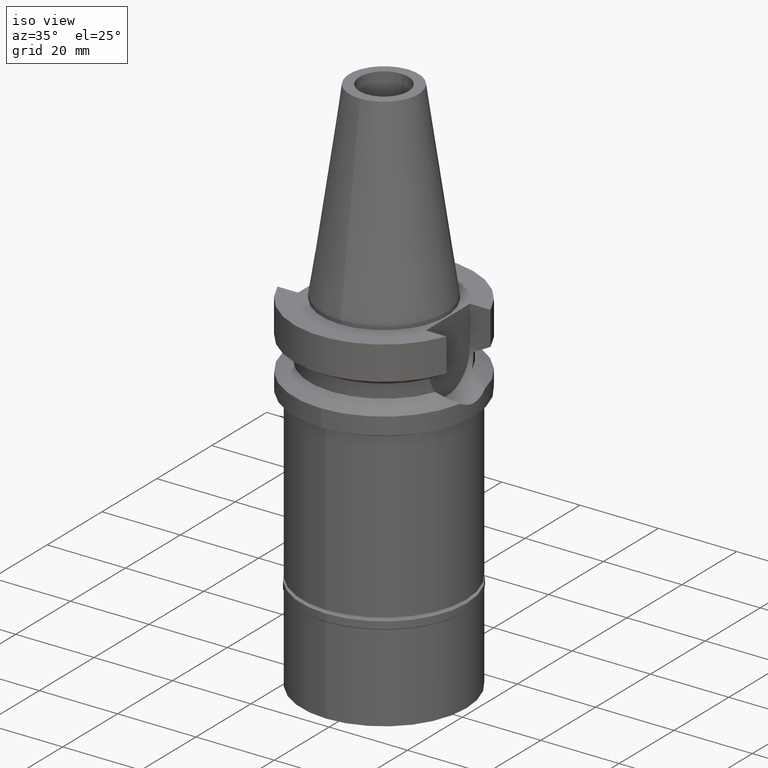
[diagram: clean part render]
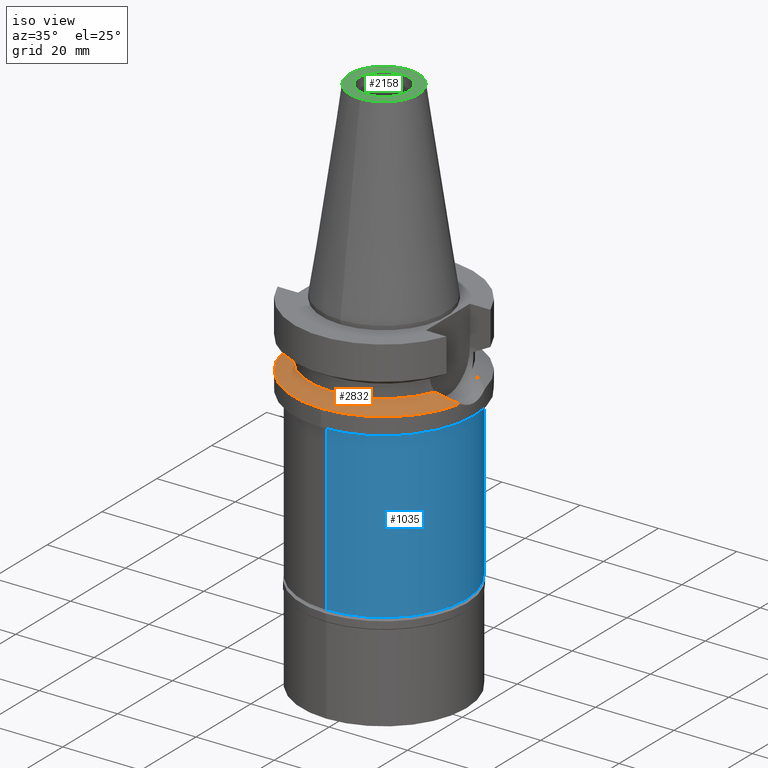
[diagram: same view with three faces highlighted in distinct colors, each labeled with its STEP entity id]
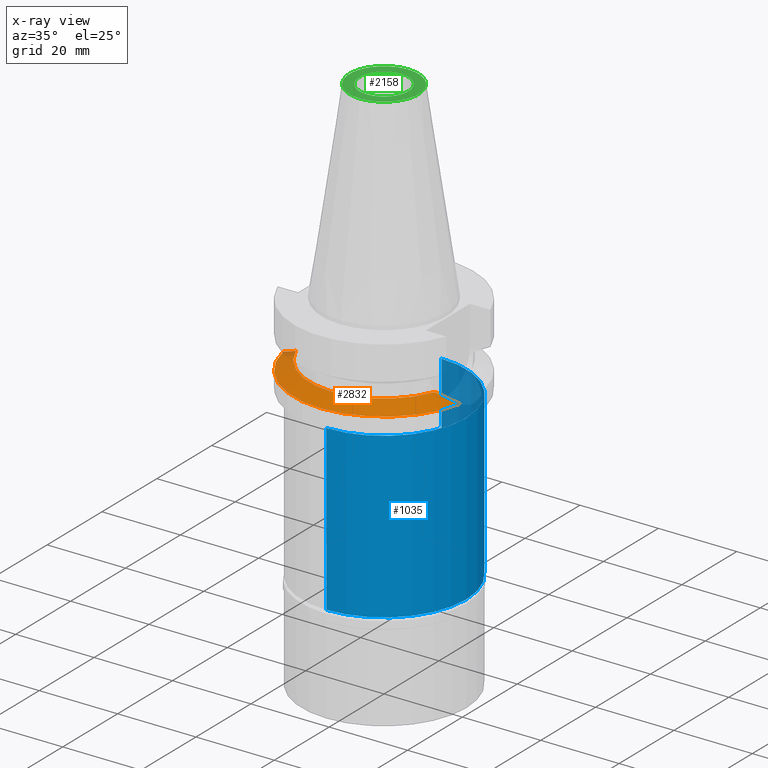
[diagram: x-ray of the same camera — body ghosted, the three highlighted faces saturated]
A machine part, iso view with three faces highlighted in distinct colors.
The next image is the same camera in x-ray (body ghosted, the three faces saturated) — at least one of them is partly hidden behind the body in this view.
Their STEP definitions:

[orange] entity #2832 — the highlighted conical surface has half-angle 60 deg.
#43 = ORIENTED_EDGE ( 'NONE', *, *, #3037, .F. ) ;
#79 = ORIENTED_EDGE ( 'NONE', *, *, #2397, .F. ) ;
#194 = VERTEX_POINT ( 'NONE', #911 ) ;
#232 = DIRECTION ( 'NONE',  ( 0.0000000000000000000, 0.0000000000000000000, -1.000000000000000000 ) ) ;
#299 = EDGE_LOOP ( 'NONE', ( #1154, #2752, #2180, #79, #43 ) ) ;
#315 = CARTESIAN_POINT ( 'NONE',  ( -21.37344794594694974, -5.343258989447710938, -17.05846002342700629 ) ) ;
#318 = AXIS2_PLACEMENT_3D ( 'NONE', #2662, #2914, #1509 ) ;
#402 = CARTESIAN_POINT ( 'NONE',  ( 19.77328210340755277, -6.137069160789010880, -16.28355951929453838 ) ) ;
#447 = CARTESIAN_POINT ( 'NONE',  ( 22.55786346208000026, -4.488072640470000430, -17.63279163029000074 ) ) ;
#493 = VERTEX_POINT ( 'NONE', #1114 ) ;
#661 = EDGE_CURVE ( 'NONE', #493, #2616, #1901, .T. ) ;
#740 = DIRECTION ( 'NONE',  ( 0.0000000000000000000, -1.000000000000000000, 0.0000000000000000000 ) ) ;
#783 = CARTESIAN_POINT ( 'NONE',  ( -17.75736593456000278, -6.758398853743999624, -15.32339055352999857 ) ) ;
#788 = CARTESIAN_POINT ( 'NONE',  ( -22.55786346208000026, -4.488072640470000430, -17.63279163029000074 ) ) ;
#796 = DIRECTION ( 'NONE',  ( 0.9807766722643714852, -0.1951335930638943839, 0.0000000000000000000 ) ) ;
#911 = CARTESIAN_POINT ( 'NONE',  ( 17.75736593456000278, -6.758398853743999624, -15.32339055352999857 ) ) ;
#1064 = AXIS2_PLACEMENT_3D ( 'NONE', #2933, #1236, #796 ) ;
#1114 = CARTESIAN_POINT ( 'NONE',  ( 0.0000000000000000000, -23.00000000000000000, -17.63279163029000074 ) ) ;
#1130 = B_SPLINE_CURVE_WITH_KNOTS ( 'NONE', 3,
 ( #2549, #402, #1879, #447 ),
 .UNSPECIFIED., .F., .F.,
 ( 4, 4 ),
 ( 0.0000000000000000000, 1.000000000000000000 ),
 .UNSPECIFIED. ) ;
#1154 = ORIENTED_EDGE ( 'NONE', *, *, #661, .F. ) ;
#1203 = DIRECTION ( 'NONE',  ( 0.0000000000000000000, -1.000000000000000000, 0.0000000000000000000 ) ) ;
#1214 = B_SPLINE_CURVE_WITH_KNOTS ( 'NONE', 3,
 ( #2458, #315, #2922, #783 ),
 .UNSPECIFIED., .F., .F.,
 ( 4, 4 ),
 ( 0.0000000000000000000, 1.000000000000000000 ),
 .UNSPECIFIED. ) ;
#1232 = VERTEX_POINT ( 'NONE', #1922 ) ;
#1236 = DIRECTION ( 'NONE',  ( 0.0000000000000000000, 0.0000000000000000000, -1.000000000000000000 ) ) ;
#1269 = CIRCLE ( 'NONE', #1064, 23.00000000000001066 ) ;
#1509 = DIRECTION ( 'NONE',  ( 0.0000000000000000000, -1.000000000000000000, 0.0000000000000000000 ) ) ;
#1839 = EDGE_CURVE ( 'NONE', #194, #1232, #1130, .T. ) ;
#1879 = CARTESIAN_POINT ( 'NONE',  ( 21.37344794591421859, -5.343258989462262853, -17.05846002341723278 ) ) ;
#1901 = CIRCLE ( 'NONE', #3023, 23.00000000000000000 ) ;
#1922 = CARTESIAN_POINT ( 'NONE',  ( 22.55786346208000026, -4.488072640470000430, -17.63279163029000074 ) ) ;
#2087 = VERTEX_POINT ( 'NONE', #2334 ) ;
#2149 = CIRCLE ( 'NONE', #2980, 19.00000000000000000 ) ;
#2180 = ORIENTED_EDGE ( 'NONE', *, *, #1839, .F. ) ;
#2210 = FACE_OUTER_BOUND ( 'NONE', #299, .T. ) ;
#2334 = CARTESIAN_POINT ( 'NONE',  ( -17.75736593456000278, -6.758398853743999624, -15.32339055352999857 ) ) ;
#2397 = EDGE_CURVE ( 'NONE', #2087, #194, #2149, .T. ) ;
#2413 = CARTESIAN_POINT ( 'NONE',  ( 0.0000000000000000000, 0.0000000000000000000, -15.32339055352999857 ) ) ;
#2458 = CARTESIAN_POINT ( 'NONE',  ( -22.55786346208000026, -4.488072640470000430, -17.63279163029000074 ) ) ;
#2549 = CARTESIAN_POINT ( 'NONE',  ( 17.75736593456000278, -6.758398853743999624, -15.32339055352999857 ) ) ;
#2616 = VERTEX_POINT ( 'NONE', #788 ) ;
#2625 = CARTESIAN_POINT ( 'NONE',  ( 0.0000000000000000000, 0.0000000000000000000, -17.63279163029000074 ) ) ;
#2662 = CARTESIAN_POINT ( 'NONE',  ( 0.0000000000000000000, 0.0000000000000000000, -16.47809109191000232 ) ) ;
#2752 = ORIENTED_EDGE ( 'NONE', *, *, #2863, .F. ) ;
#2808 = CONICAL_SURFACE ( 'NONE', #318, 21.00000000000000000, 1.047197551196400456 ) ;
#2832 = ADVANCED_FACE ( 'NONE', ( #2210 ), #2808, .T. ) ;
#2863 = EDGE_CURVE ( 'NONE', #1232, #493, #1269, .T. ) ;
#2867 = DIRECTION ( 'NONE',  ( 0.0000000000000000000, 0.0000000000000000000, 1.000000000000000000 ) ) ;
#2914 = DIRECTION ( 'NONE',  ( 0.0000000000000000000, 0.0000000000000000000, -1.000000000000000000 ) ) ;
#2922 = CARTESIAN_POINT ( 'NONE',  ( -19.77328210344028392, -6.137069160779484278, -16.28355951930925372 ) ) ;
#2933 = CARTESIAN_POINT ( 'NONE',  ( 0.0000000000000000000, 0.0000000000000000000, -17.63279163029000074 ) ) ;
#2980 = AXIS2_PLACEMENT_3D ( 'NONE', #2413, #2867, #740 ) ;
#3023 = AXIS2_PLACEMENT_3D ( 'NONE', #2625, #232, #1203 ) ;
#3037 = EDGE_CURVE ( 'NONE', #2616, #2087, #1214, .T. ) ;

[blue] entity #1035 — the highlighted cylindrical surface (partial cylindrical patch) has radius 21 mm, axis along (0, 0, -1).
#49 = AXIS2_PLACEMENT_3D ( 'NONE', #1344, #2659, #1973 ) ;
#94 = ORIENTED_EDGE ( 'NONE', *, *, #1815, .T. ) ;
#176 = DIRECTION ( 'NONE',  ( 0.0000000000000000000, 1.000000000000000000, 0.0000000000000000000 ) ) ;
#284 = CARTESIAN_POINT ( 'NONE',  ( 0.0000000000000000000, 21.00000000000000000, -23.00000000000000000 ) ) ;
#377 = CYLINDRICAL_SURFACE ( 'NONE', #49, 21.00000000000000000 ) ;
#437 = AXIS2_PLACEMENT_3D ( 'NONE', #2050, #600, #176 ) ;
#529 = CIRCLE ( 'NONE', #3028, 21.00000000000000000 ) ;
#542 = EDGE_LOOP ( 'NONE', ( #94, #1954, #1298, #2858 ) ) ;
#600 = DIRECTION ( 'NONE',  ( 0.0000000000000000000, 0.0000000000000000000, -1.000000000000000000 ) ) ;
#611 = VECTOR ( 'NONE', #736, 1000.000000000000000 ) ;
#736 = DIRECTION ( 'NONE',  ( 0.0000000000000000000, 0.0000000000000000000, -1.000000000000000000 ) ) ;
#862 = DIRECTION ( 'NONE',  ( 0.0000000000000000000, -1.000000000000000000, 0.0000000000000000000 ) ) ;
#886 = DIRECTION ( 'NONE',  ( 0.0000000000000000000, 0.0000000000000000000, -1.000000000000000000 ) ) ;
#1035 = ADVANCED_FACE ( 'NONE', ( #2523 ), #377, .T. ) ;
#1055 = VERTEX_POINT ( 'NONE', #2636 ) ;
#1274 = VERTEX_POINT ( 'NONE', #1339 ) ;
#1288 = CIRCLE ( 'NONE', #437, 21.00000000000000000 ) ;
#1298 = ORIENTED_EDGE ( 'NONE', *, *, #1669, .T. ) ;
#1339 = CARTESIAN_POINT ( 'NONE',  ( 0.0000000000000000000, -21.00000000000000000, -23.00000000000000000 ) ) ;
#1344 = CARTESIAN_POINT ( 'NONE',  ( 0.0000000000000000000, 0.0000000000000000000, 0.0000000000000000000 ) ) ;
#1361 = LINE ( 'NONE', #2565, #2004 ) ;
#1466 = LINE ( 'NONE', #284, #611 ) ;
#1669 = EDGE_CURVE ( 'NONE', #1055, #2915, #529, .T. ) ;
#1815 = EDGE_CURVE ( 'NONE', #2792, #1274, #1288, .T. ) ;
#1954 = ORIENTED_EDGE ( 'NONE', *, *, #2296, .T. ) ;
#1973 = DIRECTION ( 'NONE',  ( 0.0000000000000000000, -1.000000000000000000, 0.0000000000000000000 ) ) ;
#2004 = VECTOR ( 'NONE', #886, 1000.000000000000000 ) ;
#2032 = CARTESIAN_POINT ( 'NONE',  ( 0.0000000000000000000, 21.00000000000000000, -64.90000000000000568 ) ) ;
#2050 = CARTESIAN_POINT ( 'NONE',  ( 0.0000000000000000000, 0.0000000000000000000, -23.00000000000000000 ) ) ;
#2067 = CARTESIAN_POINT ( 'NONE',  ( 0.0000000000000000000, 0.0000000000000000000, -64.90000000000000568 ) ) ;
#2187 = CARTESIAN_POINT ( 'NONE',  ( 0.0000000000000000000, 21.00000000000000000, -23.00000000000000000 ) ) ;
#2296 = EDGE_CURVE ( 'NONE', #1274, #1055, #1361, .T. ) ;
#2523 = FACE_OUTER_BOUND ( 'NONE', #542, .T. ) ;
#2565 = CARTESIAN_POINT ( 'NONE',  ( 0.0000000000000000000, -21.00000000000000000, -23.00000000000000000 ) ) ;
#2636 = CARTESIAN_POINT ( 'NONE',  ( 0.0000000000000000000, -21.00000000000000000, -64.90000000000000568 ) ) ;
#2659 = DIRECTION ( 'NONE',  ( 0.0000000000000000000, 0.0000000000000000000, -1.000000000000000000 ) ) ;
#2792 = VERTEX_POINT ( 'NONE', #2187 ) ;
#2811 = EDGE_CURVE ( 'NONE', #2792, #2915, #1466, .T. ) ;
#2858 = ORIENTED_EDGE ( 'NONE', *, *, #2811, .F. ) ;
#2915 = VERTEX_POINT ( 'NONE', #2032 ) ;
#2992 = DIRECTION ( 'NONE',  ( 0.0000000000000000000, 0.0000000000000000000, 1.000000000000000000 ) ) ;
#3028 = AXIS2_PLACEMENT_3D ( 'NONE', #2067, #2992, #862 ) ;

[green] entity #2158 — the highlighted planar face has unit normal (0, 0, -1).
#8 = CARTESIAN_POINT ( 'NONE',  ( 0.0000000000000000000, 0.0000000000000000000, 48.39999999999999858 ) ) ;
#11 = CARTESIAN_POINT ( 'NONE',  ( 0.0000000000000000000, 0.0000000000000000000, 48.39999999999999858 ) ) ;
#89 = CIRCLE ( 'NONE', #2048, 8.816791732783000768 ) ;
#101 = CARTESIAN_POINT ( 'NONE',  ( 0.0000000000000000000, 0.0000000000000000000, 48.39999999999999858 ) ) ;
#147 = EDGE_CURVE ( 'NONE', #2803, #2609, #1795, .T. ) ;
#204 = CARTESIAN_POINT ( 'NONE',  ( 0.0000000000000000000, 8.816791732783000768, 48.39999999999999858 ) ) ;
#226 = EDGE_CURVE ( 'NONE', #2609, #2803, #2864, .T. ) ;
#233 = DIRECTION ( 'NONE',  ( 0.0000000000000000000, 0.0000000000000000000, 1.000000000000000000 ) ) ;
#289 = DIRECTION ( 'NONE',  ( 0.0000000000000000000, -1.000000000000000000, 0.0000000000000000000 ) ) ;
#330 = PLANE ( 'NONE',  #1027 ) ;
#338 = CARTESIAN_POINT ( 'NONE',  ( 0.0000000000000000000, -8.816791732783000768, 48.39999999999999858 ) ) ;
#380 = DIRECTION ( 'NONE',  ( 0.0000000000000000000, 1.000000000000000000, 0.0000000000000000000 ) ) ;
#393 = FACE_BOUND ( 'NONE', #717, .T. ) ;
#522 = EDGE_CURVE ( 'NONE', #547, #1713, #89, .T. ) ;
#525 = CARTESIAN_POINT ( 'NONE',  ( 0.0000000000000000000, 6.250000000000000000, 48.39999999999999858 ) ) ;
#547 = VERTEX_POINT ( 'NONE', #204 ) ;
#703 = EDGE_CURVE ( 'NONE', #1713, #547, #1689, .T. ) ;
#717 = EDGE_LOOP ( 'NONE', ( #2172, #2827 ) ) ;
#1027 = AXIS2_PLACEMENT_3D ( 'NONE', #101, #2946, #1774 ) ;
#1092 = EDGE_LOOP ( 'NONE', ( #2730, #1801 ) ) ;
#1119 = DIRECTION ( 'NONE',  ( 0.0000000000000000000, 0.0000000000000000000, 1.000000000000000000 ) ) ;
#1150 = CARTESIAN_POINT ( 'NONE',  ( 0.0000000000000000000, 0.0000000000000000000, 48.39999999999999858 ) ) ;
#1439 = DIRECTION ( 'NONE',  ( 0.0000000000000000000, 0.0000000000000000000, -1.000000000000000000 ) ) ;
#1640 = AXIS2_PLACEMENT_3D ( 'NONE', #8, #1439, #2583 ) ;
#1689 = CIRCLE ( 'NONE', #1640, 8.816791732783000768 ) ;
#1713 = VERTEX_POINT ( 'NONE', #338 ) ;
#1774 = DIRECTION ( 'NONE',  ( 0.0000000000000000000, -1.000000000000000000, 0.0000000000000000000 ) ) ;
#1795 = CIRCLE ( 'NONE', #2380, 6.250000000000000000 ) ;
#1801 = ORIENTED_EDGE ( 'NONE', *, *, #703, .F. ) ;
#2048 = AXIS2_PLACEMENT_3D ( 'NONE', #2764, #2987, #380 ) ;
#2158 = ADVANCED_FACE ( 'NONE', ( #2718, #393 ), #330, .F. ) ;
#2172 = ORIENTED_EDGE ( 'NONE', *, *, #147, .F. ) ;
#2380 = AXIS2_PLACEMENT_3D ( 'NONE', #1150, #1119, #2749 ) ;
#2576 = AXIS2_PLACEMENT_3D ( 'NONE', #11, #233, #289 ) ;
#2583 = DIRECTION ( 'NONE',  ( 0.0000000000000000000, -1.000000000000000000, 0.0000000000000000000 ) ) ;
#2609 = VERTEX_POINT ( 'NONE', #2924 ) ;
#2718 = FACE_OUTER_BOUND ( 'NONE', #1092, .T. ) ;
#2730 = ORIENTED_EDGE ( 'NONE', *, *, #522, .F. ) ;
#2749 = DIRECTION ( 'NONE',  ( 0.0000000000000000000, 1.000000000000000000, 0.0000000000000000000 ) ) ;
#2764 = CARTESIAN_POINT ( 'NONE',  ( 0.0000000000000000000, 0.0000000000000000000, 48.39999999999999858 ) ) ;
#2803 = VERTEX_POINT ( 'NONE', #525 ) ;
#2827 = ORIENTED_EDGE ( 'NONE', *, *, #226, .F. ) ;
#2864 = CIRCLE ( 'NONE', #2576, 6.250000000000000000 ) ;
#2924 = CARTESIAN_POINT ( 'NONE',  ( 0.0000000000000000000, -6.250000000000000000, 48.39999999999999858 ) ) ;
#2946 = DIRECTION ( 'NONE',  ( 0.0000000000000000000, 0.0000000000000000000, -1.000000000000000000 ) ) ;
#2987 = DIRECTION ( 'NONE',  ( 0.0000000000000000000, 0.0000000000000000000, -1.000000000000000000 ) ) ;